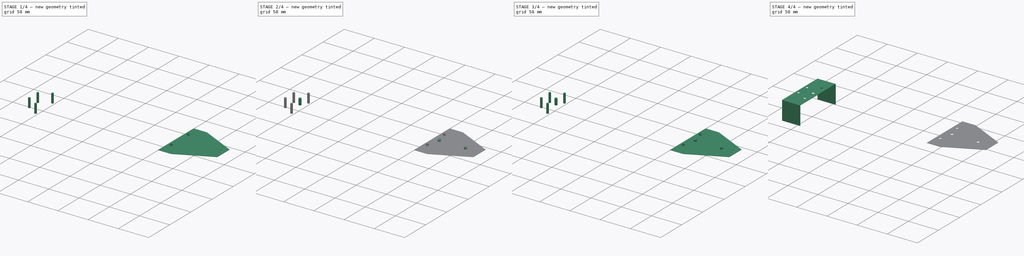
[diagram: build sequence overview — one tinted view per stage of 4, left to right]
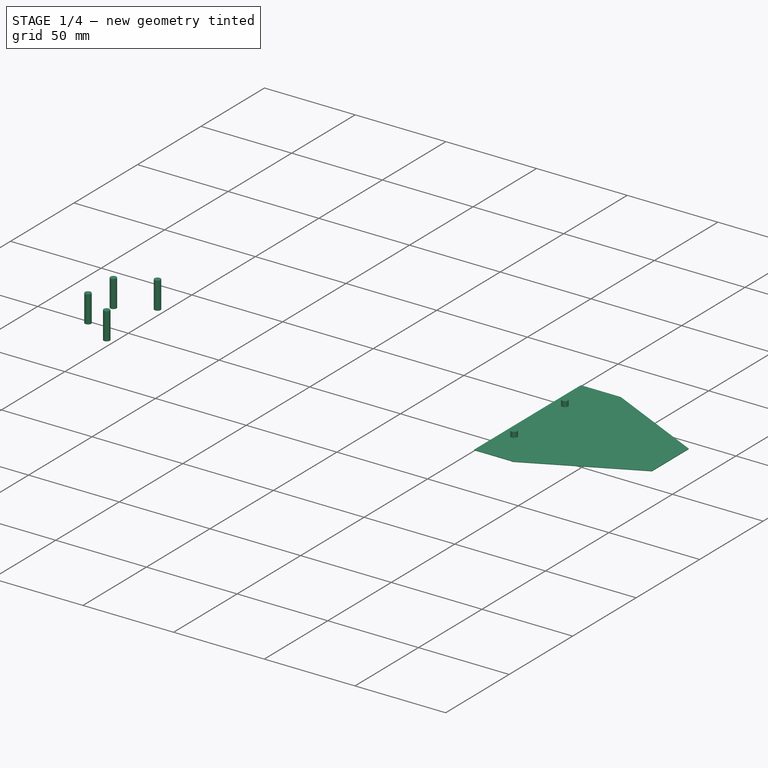
[diagram: stage 1 of 4 — iso view after this stage's code; geometry added in this stage tinted green]
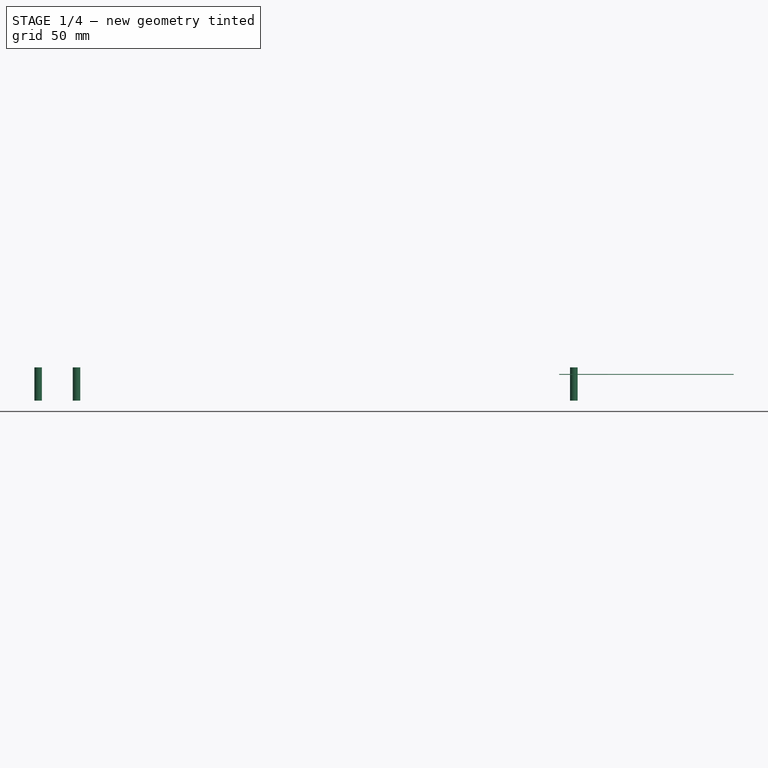
[diagram: stage 1 of 4 — front view after this stage's code; geometry added in this stage tinted green]
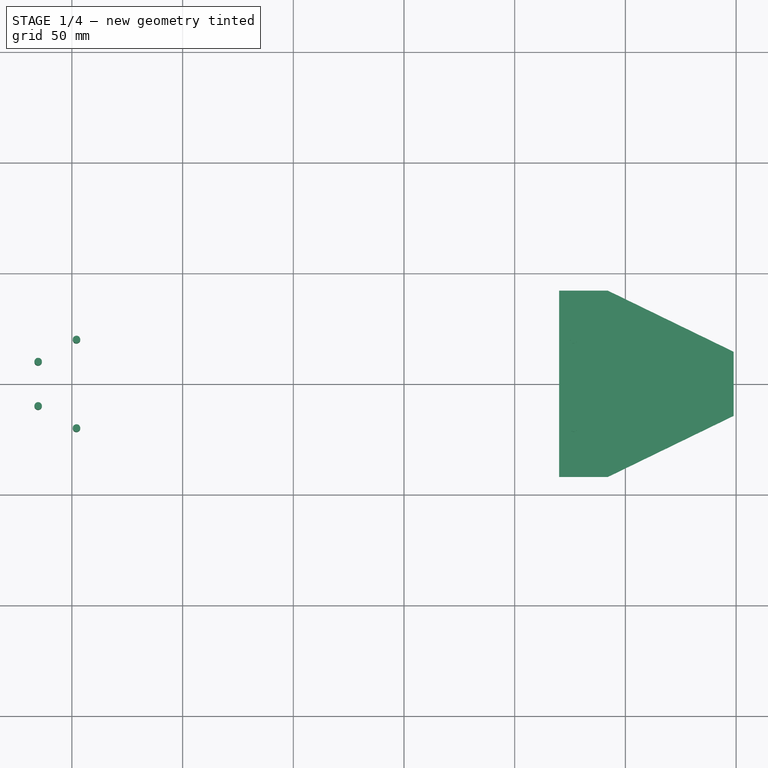
[diagram: stage 1 of 4 — top view after this stage's code; geometry added in this stage tinted green]
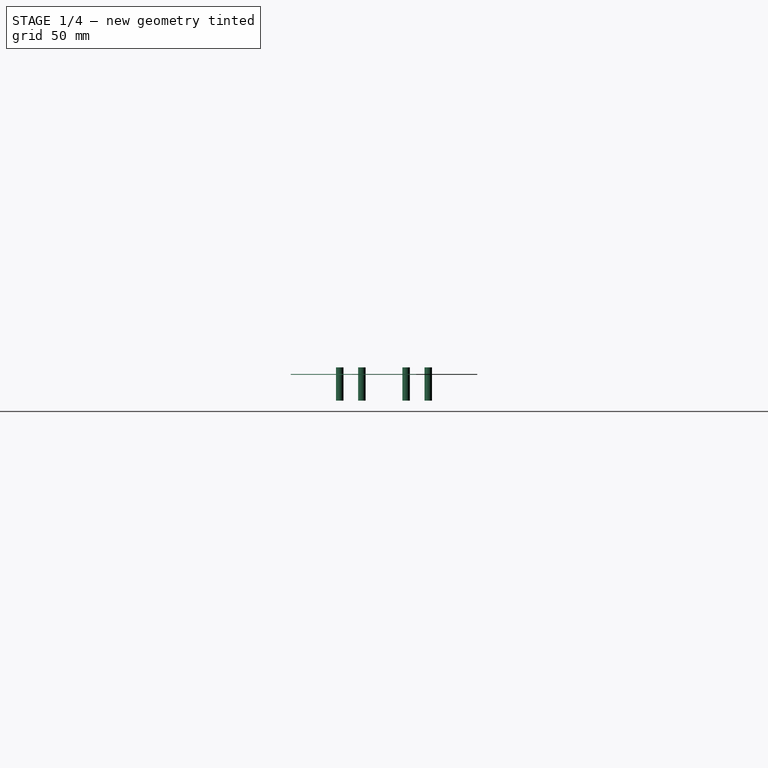
[diagram: stage 1 of 4 — right view after this stage's code; geometry added in this stage tinted green]
FCSTD DOCUMENT  (FreeCAD 1.1R38827 (Git))
Label: composit_stand3_dropper_fix_cap_inner_model
License: All rights reserved
LicenseURL: http://en.wikipedia.org/wiki/All_rights_reserved
objects: PartDesign::SubShapeBinder×3, App::Link×3, Part::FeaturePython×3, PartDesign::Body×3, Sketcher::SketchObject×2, PartDesign::FeaturePython×2, Part::MultiFuse×2, PartDesign::Boolean×2, PartDesign::CoordinateSystem×2, Part::Cylinder×1, Part::Mirroring×1
note: 27 computed .brp shape members not serialized (recipe doc carries the construction recipe); baked Part::Feature solids carry a one-line shape summary decoded from their .brp
EXTERNAL_REF file=composit_stand3_dropper_fix_cap_outer_main.FCStd obj=Spreadsheet
EXTERNAL_REF file=composit_stand3_dropper_fix_main.FCStd obj=Sketch
EXTERNAL_REF file=composit_stand3_dropper_fix_cap_outer_main.FCStd obj=Join
EXTERNAL_REF file=composit_stand3_dropper_fix_cap_outer_main.FCStd obj=Join001
EXTERNAL_REF file=composit_stand3_main.FCStd obj=Cylinder001
EXTERNAL_REF file=composit_stand3_dropper_fix_cap_outer_main.FCStd obj=Sketch

FEATURE [Part::FeaturePython] Populate001  label="Populate holes_3.4mm_placements with hole_3.4mm_rev"  # WARN: FeaturePython — macro-defined, semantics opaque (R4)
  Copying = 0
  ExposePlacement = false
  MarkerShape = 1
  MarkerSize = 0
  NumElements = 0
  Object = -> Link002
  OutputCompounding = 1
  PlacementsTo = -> Link
  Referencing = 0
  Type = lattice2PopulateCopies.LatticePopulateCopies
  isLattice = 0
FEATURE [PartDesign::FeaturePython] BaseBend001  # WARN: FeaturePython — macro-defined, semantics opaque (R4)
  BendSide = 0
  BendSketch = -> Binder001
  MidPlane = false
  Reverse = true
  Suppressed = false
  length = 70
  radius = 0.1
  thickness = 0.3
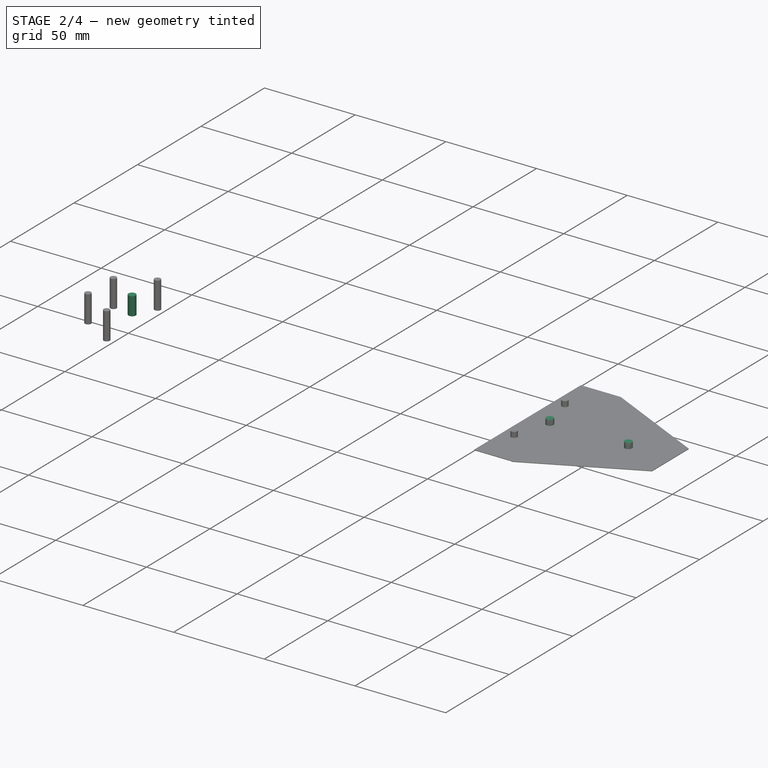
[diagram: stage 2 of 4 — iso view after this stage's code; geometry added in this stage tinted green]
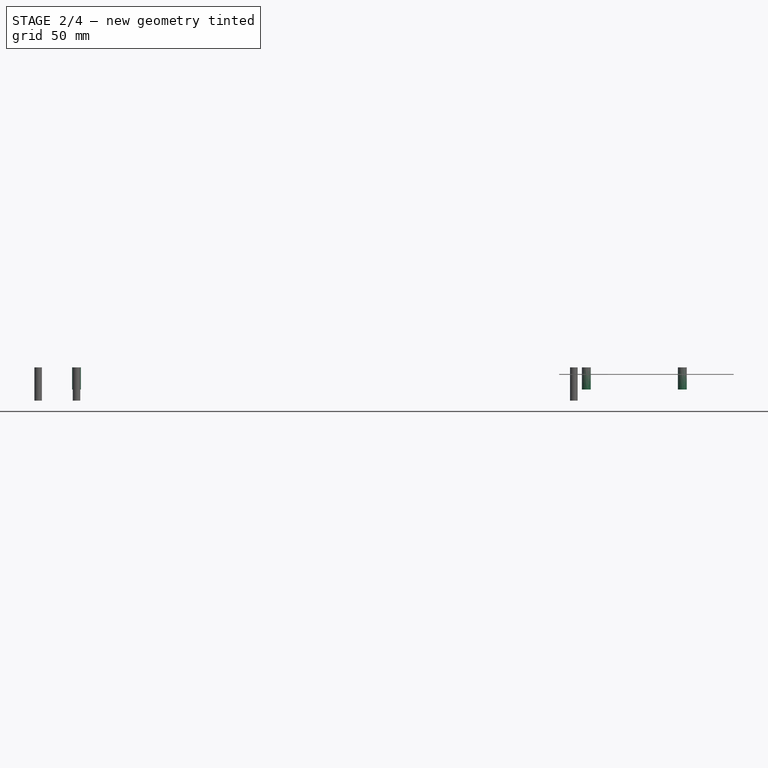
[diagram: stage 2 of 4 — front view after this stage's code; geometry added in this stage tinted green]
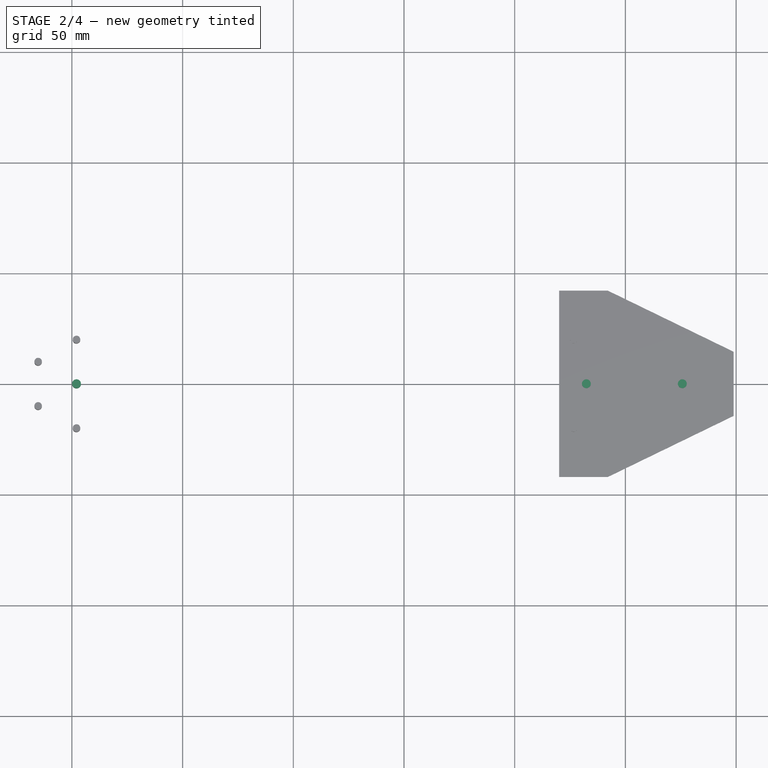
[diagram: stage 2 of 4 — top view after this stage's code; geometry added in this stage tinted green]
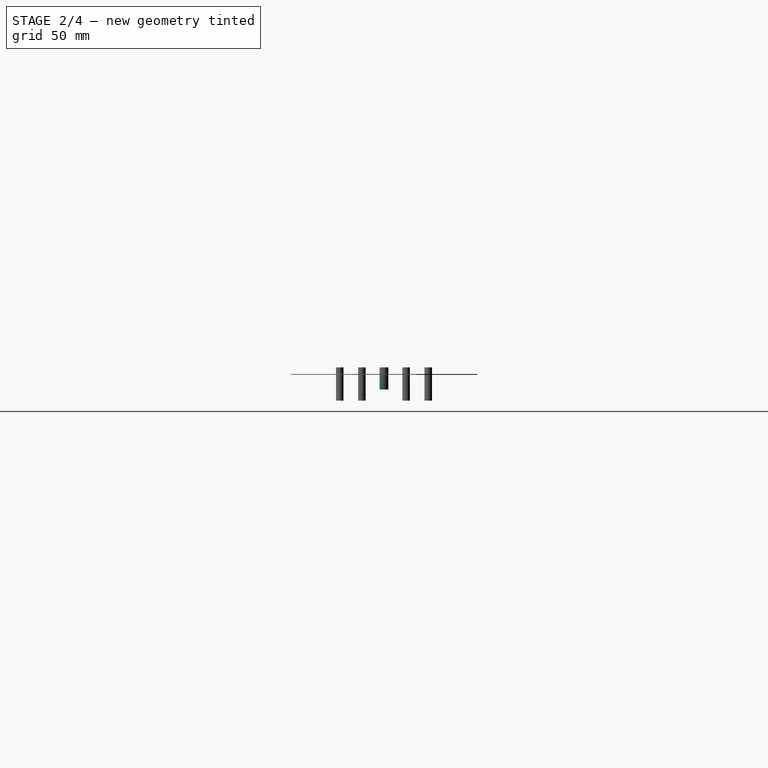
[diagram: stage 2 of 4 — right view after this stage's code; geometry added in this stage tinted green]
FEATURE [App::Link] Link002  label="hole_3.4mm_rev"
  LinkClaimChild = true
  LinkTransform = true
  LinkedObject = -> <external composit_stand3_main.FCStd>#Cylinder001
FEATURE [Part::Cylinder] Cylinder  label="hole_4mm_rev"
  Angle = 360
  AttacherType = Attacher::AttachEngine3D
  FirstAngle = 0
  Height = 10
  Placement = pos=(0,0,0) rot=(1,0,0;3.14159rad)
  Radius = 2
  SecondAngle = 0
FEATURE [Part::FeaturePython] Populate  label="Populate holes_4mm_placements with hole_4mm_rev"  # WARN: FeaturePython — macro-defined, semantics opaque (R4)
  Copying = 0
  ExposePlacement = false
  MarkerShape = 1
  MarkerSize = 0
  NumElements = 0
  Object = -> Cylinder
  OutputCompounding = 1
  PlacementsTo = -> Link001
  Referencing = 0
  Type = lattice2PopulateCopies.LatticePopulateCopies
  isLattice = 0
FEATURE [PartDesign::CoordinateSystem] Local_CS
  AttacherType = Attacher::AttachEngine3D
  AttachmentSupport = -> [XY_Plane]
  MapMode = 5
FEATURE [PartDesign::Body] Body  label="cap_inner_1"
  AllowCompound = false
  Group = -> [Binder,BaseBend,Boolean,Local_CS]
  Origin = -> Origin
  Tip = -> Boolean
FEATURE [PartDesign::CoordinateSystem] Local_CS001
  AttacherType = Attacher::AttachEngine3D
  AttachmentSupport = -> [XY_Plane001]
  MapMode = 5
FEATURE [PartDesign::Body] Body001  label="cap_inner_2"
  AllowCompound = false
  Group = -> [Binder001,BaseBend001,Boolean001,Local_CS001]
  Origin = -> Origin001
  Tip = -> Boolean001
FEATURE [PartDesign::SubShapeBinder] Binder002
  BindCopyOnChange = 0
  BindMode = 0
  ClaimChildren = false
  Fuse = false
  MakeFace = true
  OffsetFill = false
  OffsetIntersection = false
  OffsetJoinType = 0
  OffsetOpenResult = false
  PartialLoad = false
  Relative = true
  Support = -> [<external composit_stand3_dropper_fix_cap_outer_main.FCStd>#Sketch]
  _Version = 2
  expr: Support = composit_stand3_dropper_fix_cap_outer_main#<<main_sketch>>._self
FEATURE [Sketcher::SketchObject] Sketch001
  ArcFitTolerance = 0
  ExternalGeometry = -> [Binder002]
  FullyConstrained = true
  MakeInternals = false
  sketch-geometry (7):
    g0: LineSegment StartX=270.046 StartY=0 StartZ=0 EndX=270.046 EndY=42.1 EndZ=0
    g1: LineSegment StartX=270.046 StartY=42.1 StartZ=0 EndX=292.046 EndY=42.1 EndZ=0
    g2: LineSegment StartX=292.046 StartY=42.1 StartZ=0 EndX=348.872 EndY=14.5 EndZ=0
    g3: LineSegment StartX=348.872 StartY=14.5 StartZ=0 EndX=348.872 EndY=0 EndZ=0
    g4: LineSegment [constr] StartX=292.046 StartY=45.1 StartZ=0 EndX=292.046 EndY=42.1 EndZ=0
    g5: LineSegment [constr] StartX=292.046 StartY=42.1 StartZ=0 EndX=293.356 EndY=44.7985 EndZ=0
    g6: LineSegment [constr] StartX=348.872 StartY=14.5 StartZ=0 EndX=351.872 EndY=14.5 EndZ=0
  constraints (22):
    c: PointOnObject(g0,g-1)
    c: Vertical(g0)
    c: Coincident(g0,g1)
    c: Horizontal(g1)
    c: Coincident(g1,g2)
    c: Coincident(g2,g3)
    c: PointOnObject(g3,g-1)
    c: Vertical(g3)
    c: Coincident(g4,g1)
    c: Vertical(g4)
    c: Coincident(g4,g5)
    c: PointOnObject(g5,g-3)
    c: Coincident(g2,g6)
    c: Horizontal(g6)
    c: Vertical(g-3,g6)
    c: Perpendicular(g-3,g5)
    c: Horizontal(g4,g-3)
    c: Equal(g4,g5)
    c: Equal(g5,g6)
    c: DistanceY(g4,g4) = 3
    c: DistanceX(g1,g1) = 22
    c: Perpendicular(g5,g2)
FEATURE [Part::Mirroring] Part__Mirroring  label="Sketch001 (Mirror #1)"
  Base = (0,0,0)
  Normal = (0,1,0)
  Source = -> Sketch001
FEATURE [Part::FeaturePython] Connect  # WARN: FeaturePython — macro-defined, semantics opaque (R4)
  Objects = -> [Sketch001,Part__Mirroring]
  Tolerance = 0

RESOLVED EXTERNAL PARTS (link-assembly join: the EXTERNAL_REF files above that resolve inside this repo's crawl, each included once):
---- part composit_stand3_dropper_fix_cap_outer_main.FCStd = doc fcstd_619fc7925e38 ----
FCSTD DOCUMENT  (FreeCAD 1.1R38827 (Git))
Label: composit_stand3_dropper_fix_cap_outer_main
License: All rights reserved
LicenseURL: http://en.wikipedia.org/wiki/All_rights_reserved
objects: Part::FeaturePython×8, Sketcher::SketchObject×4, Part::Feature×1, PartDesign::SubShapeBinder×1, Part::Offset2D×1, Spreadsheet::Sheet×1
note: 19 computed .brp shape members not serialized (recipe doc carries the construction recipe); baked Part::Feature solids carry a one-line shape summary decoded from their .brp
EXTERNAL_REF file=composit_stand3_dropper_fix_main.FCStd obj=Sketch

FEATURE [Part::Feature] Body168  label="cap_outer_material_0.30ansi002"
  Placement = pos=(0,0,0) rot=(0,0,-1;1.5708rad)
  shape: bbox 339.9 x 90.2 x 40.4 mm, 133 faces (baked)
FEATURE [PartDesign::SubShapeBinder] Binder
  BindCopyOnChange = 0
  BindMode = 0
  ClaimChildren = false
  Fuse = false
  MakeFace = true
  OffsetFill = false
  OffsetIntersection = false
  OffsetJoinType = 0
  OffsetOpenResult = false
  PartialLoad = false
  Relative = true
  Support = -> [<external composit_stand3_dropper_fix_main.FCStd>#Sketch]
  _Version = 2
FEATURE [Sketcher::SketchObject] Sketch  label="main_sketch"
  ArcFitTolerance = 0
  ExternalGeometry = -> [Binder]
  FullyConstrained = true
  MakeInternals = false
  sketch-geometry (10):
    g0: LineSegment StartX=351.872 StartY=0 StartZ=0 EndX=351.872 EndY=16.378 EndZ=0
    g1: LineSegment StartX=351.872 StartY=16.378 StartZ=0 EndX=292.736 EndY=45.1 EndZ=0
    g2: LineSegment StartX=292.736 StartY=45.1 StartZ=0 EndX=26.0385 EndY=45.1 EndZ=0
    g3: LineSegment StartX=26.0385 StartY=45.1 StartZ=0 EndX=0.23094 EndY=0.4 EndZ=0
    g4: LineSegment [constr] StartX=292.046 StartY=45.1 StartZ=0 EndX=292.046 EndY=42.1 EndZ=0
    g5: LineSegment [constr] StartX=292.046 StartY=42.1 StartZ=0 EndX=293.356 EndY=44.7985 EndZ=0
    g6: LineSegment [constr] StartX=351.872 StartY=14.5 StartZ=0 EndX=348.872 EndY=14.5 EndZ=0
    g7: LineSegment [constr] StartX=348.872 StartY=14.5 StartZ=0 EndX=350.182 EndY=17.1985 EndZ=0
    g8: LineSegment [constr] StartX=27.7705 StartY=45.1 StartZ=0 EndX=27.7705 EndY=42.1 EndZ=0
    g9: LineSegment [constr] StartX=27.7705 StartY=42.1 StartZ=0 EndX=25.1725 EndY=43.6 EndZ=0
  constraints (31):
    c: Vertical(g0)
    c: Coincident(g0,g1)
    c: Coincident(g1,g2)
    c: Horizontal(g2)
    c: Coincident(g2,g3)
    c: PointOnObject(g0,g-1)
    c: PointOnObject(g4,g2)
    c: Coincident(g4,g-4)
    c: Vertical(g4)
    c: Coincident(g4,g5)
    c: PointOnObject(g5,g1)
    c: PointOnObject(g6,g0)
    c: Coincident(g6,g-3)
    c: Horizontal(g6)
    c: Coincident(g6,g7)
    c: PointOnObject(g7,g1)
    c: Perpendicular(g1,g7)
    c: Perpendicular(g1,g5)
    c: Equal(g6,g7)
    c: Equal(g7,g5)
    c: DistanceX(g-3,g0) = 3
    c: Equal(g4,g5)
    c: PointOnObject(g8,g2)
    c: Coincident(g8,g-5)
    c: Vertical(g8)
    c: Coincident(g8,g9)
    c: PointOnObject(g9,g3)
    c: Perpendicular(g3,g9)
    c: Equal(g9,g8)
    c: Parallel(g3,g-5)
    c: DistanceY(g3) = 0.4
FEATURE [Part::Offset2D] Offset2D
  Fill = false
  Intersection = false
  Join = 0
  Mode = 0
  SelfIntersection = false
  Source = -> Sketch
  Value = -0.4
FEATURE [Sketcher::SketchObject] Sketch001
  ArcFitTolerance = 0
  ExternalGeometry = -> [Offset2D]
  FullyConstrained = true
  MakeInternals = false
  sketch-geometry (11):
    g0: LineSegment StartX=351.472 StartY=16.1276 StartZ=0 EndX=325.709 EndY=0 EndZ=0
    g1: LineSegment [constr] StartX=336.965 StartY=23.1736 StartZ=0 EndX=325.709 EndY=0 EndZ=0
    g2: LineSegment [constr] StartX=325.709 StartY=0 StartZ=0 EndX=351.472 EndY=0 EndZ=0
    g3: LineSegment StartX=292.644 StartY=44.7 StartZ=0 EndX=282.363 EndY=0 EndZ=0
    g4: LineSegment [constr] StartX=301.892 StartY=40.2083 StartZ=0 EndX=282.363 EndY=0 EndZ=0
    g5: LineSegment [constr] StartX=282.363 StartY=0 StartZ=0 EndX=282.363 EndY=44.7 EndZ=0
    g6: LineSegment StartX=325.709 StartY=0 StartZ=0 EndX=282.363 EndY=0 EndZ=0
    g7: LineSegment StartX=282.363 StartY=0 StartZ=0 EndX=52.077 EndY=0 EndZ=0
    g8: LineSegment StartX=52.077 StartY=0 StartZ=0 EndX=26.2694 EndY=44.7 EndZ=0
    g9: LineSegment [constr] StartX=52.077 StartY=44.7 StartZ=0 EndX=52.077 EndY=0 EndZ=0
    g10: LineSegment [constr] StartX=52.077 StartY=0 StartZ=0 EndX=13.3657 EndY=22.35 EndZ=0
  constraints (31):
    c: Coincident(g1,g2)
    c: Horizontal(g2)
    c: Vertical(g2,g0)
    c: Equal(g1,g2)
    c: Coincident(g1,g0)
    c: PointOnObject(g0,g-1)
    c: PointOnObject(g3,g-1)
    c: Coincident(g4,g3)
    c: Coincident(g4,g5)
    c: Vertical(g5)
    c: Horizontal(g5,g3)
    c: Equal(g4,g5)
    c: Coincident(g0,g6)
    c: Coincident(g6,g3)
    c: Coincident(g6,g7)
    c: PointOnObject(g7,g-1)
    c: Coincident(g7,g8)
    c: Coincident(g9,g7)
    c: Vertical(g9)
    c: Coincident(g9,g10)
    c: Horizontal(g9,g8)
    c: Equal(g10,g9)
    c: Coincident(g0,g-4)
    c: PointOnObject(g1,g-4)
    c: Perpendicular(g-4,g1)
    c: Coincident(g3,g-4)
    c: PointOnObject(g4,g-4)
    c: Perpendicular(g-4,g4)
    c: PointOnObject(g10,g-3)
    c: Perpendicular(g-3,g10)
    c: Coincident(g8,g-3)
FEATURE [Sketcher::SketchObject] Sketch002  label="top_cut_sketch"
  ArcFitTolerance = 0
  ExternalGeometry = -> [Sketch001,Sketch,Offset2D]
  FullyConstrained = true
  MakeInternals = false
  sketch-geometry (34):
    g0: LineSegment StartX=26.3272 StartY=44.7 StartZ=0 EndX=52.1059 EndY=0.05 EndZ=0
    g1: LineSegment StartX=52.1059 StartY=0.05 StartZ=0 EndX=282.323 EndY=0.05 EndZ=0
    g2: LineSegment StartX=282.323 StartY=0.05 StartZ=0 EndX=292.592 EndY=44.7 EndZ=0
    g3: LineSegment StartX=292.69 StartY=44.6776 StartZ=0 EndX=282.425 EndY=0.05 EndZ=0
    g4: LineSegment StartX=282.425 StartY=0.05 StartZ=0 EndX=325.695 EndY=0.05 EndZ=0
    g5: LineSegment StartX=325.695 StartY=0.05 StartZ=0 EndX=351.419 EndY=16.1534 EndZ=0
    g6: LineSegment StartX=351.472 StartY=16.0687 StartZ=0 EndX=325.803 EndY=0 EndZ=0
    g7: LineSegment [constr] StartX=51.9904 StartY=0.05 StartZ=0 EndX=52.1059 EndY=0.05 EndZ=0
    g8: LineSegment [constr] StartX=282.323 StartY=0.05 StartZ=0 EndX=282.425 EndY=0.05 EndZ=0
    g9: LineSegment [constr] StartX=325.695 StartY=0.05 StartZ=0 EndX=325.883 EndY=0.05 EndZ=0
    g10: LineSegment [constr] StartX=51.9904 StartY=0 StartZ=0 EndX=51.9904 EndY=0.05 EndZ=0
    g11: LineSegment [constr] StartX=51.9904 StartY=0.05 StartZ=0 EndX=52.0337 EndY=0.075 EndZ=0
    g12: LineSegment [constr] StartX=52.0337 StartY=0.075 StartZ=0 EndX=52.077 EndY=0.1 EndZ=0
    g13: LineSegment [constr] StartX=282.425 StartY=0.05 StartZ=0 EndX=282.377 EndY=0.0612074 EndZ=0
    g14: LineSegment [constr] StartX=282.377 StartY=0.0612074 StartZ=0 EndX=282.328 EndY=0.0724148 EndZ=0
    g15: LineSegment [constr] StartX=325.883 StartY=0.05 StartZ=0 EndX=325.857 EndY=0.0923805 EndZ=0
    g16: LineSegment [constr] StartX=325.857 StartY=0.0923805 StartZ=0 EndX=325.83 EndY=0.134761 EndZ=0
    g17: LineSegment StartX=351.419 StartY=16.1534 StartZ=0 EndX=351.593 EndY=16.5132 EndZ=0
    g18: LineSegment StartX=351.593 StartY=16.5132 StartZ=0 EndX=351.872 EndY=16.378 EndZ=0
    g19: LineSegment StartX=351.872 StartY=16.378 StartZ=0 EndX=351.872 EndY=16.0687 EndZ=0
    g20: LineSegment StartX=351.872 StartY=16.0687 StartZ=0 EndX=351.472 EndY=16.0687 EndZ=0
    g21: LineSegment [constr] StartX=351.419 StartY=16.1534 StartZ=0 EndX=351.472 EndY=16.1276 EndZ=0
    g22: LineSegment [constr] StartX=351.472 StartY=16.1276 StartZ=0 EndX=351.472 EndY=16.0687 EndZ=0
    g23: LineSegment StartX=26.2406 StartY=44.65 StartZ=0 EndX=25.8942 EndY=44.85 EndZ=0
    g24: LineSegment StartX=25.8942 StartY=44.85 StartZ=0 EndX=26.0385 EndY=45.1 EndZ=0
    g25: LineSegment StartX=26.0385 StartY=45.1 StartZ=0 EndX=26.3272 EndY=45.1 EndZ=0
    g26: LineSegment StartX=26.3272 StartY=45.1 StartZ=0 EndX=26.3272 EndY=44.7 EndZ=0
    g27: LineSegment StartX=292.592 StartY=44.7 StartZ=0 EndX=292.592 EndY=45.1 EndZ=0
    g28: LineSegment StartX=292.592 StartY=45.1 StartZ=0 EndX=292.736 EndY=45.1 EndZ=0
    g29: LineSegment StartX=292.736 StartY=45.1 StartZ=0 EndX=292.864 EndY=45.0374 EndZ=0
    g30: LineSegment StartX=292.864 StartY=45.0374 StartZ=0 EndX=292.69 EndY=44.6776 EndZ=0
    g31: LineSegment StartX=26.2406 StartY=44.65 StartZ=0 EndX=51.9904 EndY=0.05 EndZ=0
    g32: LineSegment StartX=51.9904 StartY=0.05 StartZ=0 EndX=0 EndY=0.05 EndZ=0
    g33: LineSegment StartX=0 StartY=0.05 StartZ=0 EndX=0 EndY=0 EndZ=0
  constraints (95):
    c: Coincident(g0,g1)
    c: Horizontal(g1)
    c: Coincident(g1,g2)
    c: Coincident(g3,g4)
    c: Horizontal(g4)
    c: Coincident(g4,g5)
    c: Coincident(g7,g0)
    c: Horizontal(g7)
    c: Coincident(g8,g1)
    c: Coincident(g8,g3)
    c: Horizontal(g8)
    c: Coincident(g9,g4)
    c: Horizontal(g9)
    c: Parallel(g6,g-4)
    c: Parallel(g-4,g5)
    c: Parallel(g3,g-3)
    c: Parallel(g-3,g2)
    c: Parallel(g0,g-5)
    c: PointOnObject(g10,g-1)
    c: Coincident(g10,g11)
    c: PointOnObject(g11,g-5)
    c: Coincident(g11,g12)
    c: PointOnObject(g12,g0)
    c: Vertical(g10)
    c: Equal(g10,g11)
    c: Equal(g11,g12)
    c: Coincident(g3,g13)
    c: PointOnObject(g13,g-3)
    c: Coincident(g13,g14)
    c: PointOnObject(g14,g2)
    c: PointOnObject(g15,g-4)
    c: Coincident(g15,g16)
    c: PointOnObject(g16,g5)
    c: Equal(g15,g16)
    c: Equal(g16,g13)
    c: Equal(g13,g14)
    c: Equal(g14,g12)
    c: Perpendicular(g-5,g11)
    c: Perpendicular(g12,g-5)
    c: Perpendicular(g13,g-3)
    c: Perpendicular(g14,g-3)
    c: Perpendicular(g15,g-4)
    c: Perpendicular(g16,g-4)
    c: Coincident(g5,g17)
    c: PointOnObject(g17,g-6)
    c: Coincident(g17,g18)
    c: Coincident(g18,g-6)
    c: Coincident(g18,g19)
    c: Vertical(g19)
    c: Coincident(g19,g20)
    c: Coincident(g20,g6)
    c: Horizontal(g20)
    c: Coincident(g5,g21)
    c: Coincident(g21,g-4)
    c: Coincident(g21,g22)
    c: Coincident(g22,g6)
    c: Vertical(g22)
    c: PointOnObject(g5,g-7)
    c: Perpendicular(g17,g21)
    c: DistanceY(g10,g10) = 0.05
    c: Coincident(g31,g23)
    c: Coincident(g23,g24)
    c: Coincident(g24,g25)
    c: Horizontal(g25)
    c: Coincident(g25,g26)
    c: Coincident(g26,g0)
    c: Vertical(g26)
    c: Coincident(g24,g-8)
    c: Perpendicular(g24,g23)
    c: Equal(g26,g23)
    c: Equal(g23,g20)
    c: Equal(g25,g24)
    c: Coincident(g2,g27)
    c: Vertical(g27)
    c: Coincident(g27,g28)
    c: Coincident(g28,g-6)
    c: Coincident(g28,g29)
    c: PointOnObject(g29,g-6)
    c: Coincident(g29,g30)
    c: Coincident(g30,g3)
    c: Horizontal(g28)
    c: Perpendicular(g29,g30)
    c: Equal(g30,g27)
    c: Equal(g30,g17)
    c: Coincident(g7,g10)
    c: PointOnObject(g9,g6)
    c: Coincident(g9,g15)
    c: PointOnObject(g6,g-1)
    c: Parallel(g-5,g31)
    c: Coincident(g31,g7)
    c: Coincident(g7,g32)
    c: Horizontal(g32)
    c: Coincident(g33,g32)
    c: Coincident(g33,g-1)
    c: Vertical(g33)
FEATURE [Part::FeaturePython] Placment  # WARN: FeaturePython — macro-defined, semantics opaque (R4)
  AttacherType = Attacher::AttachEngine3D
  AttachmentSupport = -> [Sketch001]
  ExposePlacement = true
  MapMode = 1
  MarkerShape = 1
  MarkerSize = 10
  NumElements = 1
  Placement = pos=(52.077,0,0) rot=(0,0,1;0rad)
  Type = lattice2AttachablePlacement.AttachablePlacement
  isLattice = 1
FEATURE [Part::FeaturePython] Placment001  # WARN: FeaturePython — macro-defined, semantics opaque (R4)
  AttacherType = Attacher::AttachEngine3D
  AttachmentSupport = -> [Sketch001]
  ExposePlacement = true
  MapMode = 1
  MarkerShape = 1
  MarkerSize = 10
  NumElements = 1
  Placement = pos=(282.363,0,0) rot=(0,0,1;0rad)
  Type = lattice2AttachablePlacement.AttachablePlacement
  isLattice = 1
FEATURE [Part::FeaturePython] Placment002  # WARN: FeaturePython — macro-defined, semantics opaque (R4)
  AttacherType = Attacher::AttachEngine3D
  AttachmentSupport = -> [Sketch001]
  ExposePlacement = true
  MapMode = 1
  MarkerShape = 1
  MarkerSize = 10
  NumElements = 1
  Placement = pos=(325.709,0,0) rot=(0,0,1;0rad)
  Type = lattice2AttachablePlacement.AttachablePlacement
  isLattice = 1
FEATURE [Sketcher::SketchObject] Sketch003
  ArcFitTolerance = 0
  ExternalGeometry = -> [Sketch001]
  FullyConstrained = true
  MakeInternals = false
  sketch-geometry (9):
    g0: Circle CenterX=34.7565 CenterY=10 CenterZ=0 NormalX=0 NormalY=0 NormalZ=1 AngleXU=0 Radius=1.7
    g1: Circle CenterX=52.077 CenterY=20 CenterZ=0 NormalX=0 NormalY=0 NormalZ=1 AngleXU=0 Radius=1.7
    g2: Circle CenterX=276.702 CenterY=20 CenterZ=0 NormalX=0 NormalY=0 NormalZ=1 AngleXU=0 Radius=1.7
    g3: LineSegment [constr] StartX=52.077 StartY=0 StartZ=0 EndX=52.077 EndY=20 EndZ=0
    g4: LineSegment [constr] StartX=34.7565 StartY=10 StartZ=0 EndX=34.7565 EndY=0 EndZ=0
    g5: LineSegment [constr] StartX=52.077 StartY=20 StartZ=0 EndX=43.4167 EndY=15 EndZ=0
    g6: LineSegment [constr] StartX=43.4167 StartY=15 StartZ=0 EndX=34.7565 EndY=10 EndZ=0
    g7: LineSegment [constr] StartX=52.077 StartY=20 StartZ=0 EndX=276.702 EndY=20 EndZ=0
    g8: LineSegment [constr] StartX=276.702 StartY=20 StartZ=0 EndX=286.447 EndY=17.7585 EndZ=0
  constraints (24):
    c: Coincident(g3,g1)
    c: Vertical(g3)
    c: Coincident(g3,g5)
    c: Coincident(g6,g0)
    c: Coincident(g6,g4)
    c: PointOnObject(g4,g-1)
    c: Vertical(g4)
    c: Coincident(g5,g6)
    c: Parallel(g5,g6)
    c: Diameter(g1) = 3.4
    c: Equal(g1,g0)
    c: Equal(g2,g1)
    c: Equal(g5,g6)
    c: Coincident(g7,g1)
    c: Coincident(g7,g2)
    c: Distance(g5) = 10
    c: PointOnObject(g5,g-3)
    c: Coincident(g3,g-3)
    c: Perpendicular(g-3,g5)
    c: Coincident(g8,g2)
    c: PointOnObject(g8,g-4)
    c: Perpendicular(g-4,g8)
    c: Equal(g8,g5)
    c: Horizontal(g7)
FEATURE [Part::FeaturePython] Downgrade  label="Edges of Sketch003"  # WARN: FeaturePython — macro-defined, semantics opaque (R4)
  Base = -> Sketch003
  Mode = 8
FEATURE [Part::FeaturePython] ArrayFromShape  label="Array from Edges of Sketch003"  # WARN: FeaturePython — macro-defined, semantics opaque (R4)
  CompoundTraversal = 1
  ExposePlacement = false
  MarkerShape = 1
  MarkerSize = 50
  NumElements = 3
  OrientElementIndex = 0
  OrientMode = 2
  ShapeLink = -> Downgrade
  TranslateElementIndex = 0
  TranslateMode = 3
  Type = lattice2ArrayFromShape.LatticeArrayFromShape
  isLattice = 1
FEATURE [Part::FeaturePython] Mirror  label="Mirror of Array from Edges of Sketch003"  # WARN: FeaturePython — macro-defined, semantics opaque (R4)
  ExposePlacement = false
  FlipX = false
  FlipY = true
  FlipZ = false
  MarkerShape = 1
  MarkerSize = 0
  NumElements = 3
  Object = -> ArrayFromShape
  ObjectTraversal = 0
  Type = lattice2Mirror.LatticeMirror
  isLattice = 1
FEATURE [Part::FeaturePython] Join  label="holes_3.4mm_placements"  # WARN: FeaturePython — macro-defined, semantics opaque (R4)
  ExposePlacement = false
  Interleave = false
  Links = -> [ArrayFromShape,Mirror]
  MarkerShape = 1
  MarkerSize = 0
  NumElements = 6
  Placement = pos=(0,0,40) rot=(0,0,1;0rad)
  Type = lattice2JoinArrays.JoinArrays
  isLattice = 1
  expr: .Placement.Base.z = <<Properties>>.height
FEATURE [Part::FeaturePython] Join001  label="holes_4mm_placements"  # WARN: FeaturePython — macro-defined, semantics opaque (R4)
  ExposePlacement = false
  Interleave = false
  Links = -> [Placment,Placment002,Placment001]
  MarkerShape = 1
  MarkerSize = 0
  NumElements = 3
  Placement = pos=(0,0,40) rot=(0,0,1;0rad)
  Type = lattice2JoinArrays.JoinArrays
  isLattice = 1
  expr: .Placement.Base.z = <<Properties>>.height
FEATURE [Spreadsheet::Sheet] Spreadsheet  label="Properties"
  cells = B2(height)==40 mm; C2(width)=
---- part composit_stand3_main.FCStd = doc fcstd_90b2f18ea94f ----
FCSTD DOCUMENT  (FreeCAD 1.1R38827 (Git))
Label: composit_stand3_main
License: All rights reserved
LicenseURL: http://en.wikipedia.org/wiki/All_rights_reserved
objects: Part::Cylinder×2, Sketcher::SketchObject×1, Part::FeaturePython×1
note: 5 computed .brp shape members not serialized (recipe doc carries the construction recipe); baked Part::Feature solids carry a one-line shape summary decoded from their .brp

FEATURE [Sketcher::SketchObject] Sketch  label="main_sketch"
  ArcFitTolerance = 0
  FullyConstrained = true
  MakeInternals = false
  sketch-geometry (4):
    g0: LineSegment [constr] StartX=0 StartY=0 StartZ=0 EndX=8.37158 EndY=14.5 EndZ=0
    g1: LineSegment StartX=8.37158 StartY=14.5 StartZ=0 EndX=351.872 EndY=14.5 EndZ=0
    g2: LineSegment StartX=351.872 StartY=14.5 StartZ=0 EndX=351.872 EndY=0 EndZ=0
    g3: GeomPoint [constr] X=351.872 Y=-14.5 Z=0
  constraints (13):
    c: Coincident(g-1,g0)
    c: Horizontal(g1)
    c: Coincident(g1,g2)
    c: PointOnObject(g2,g-1)
    c: Vertical(g2)
    c: Angle(g0) = 1.0472
    c: DistanceX(g0,g1) = 343.5  'face_width'
    c: DistanceY(g3,g1) = 29  'end_width'
    c: Symmetric(g3,g1,g2)
    c: DistanceX(g0) = 8.37158  'x_face_offset'
    c: Coincident(g1,g0)
    c: Distance(g0) = 16.7432  'corner_distance'
    c: DistanceY(g0,g0) = 14.5
FEATURE [Part::FeaturePython] LinearArray  label="modules_placement_x"  # WARN: FeaturePython — macro-defined, semantics opaque (R4)
  Alignment = 0
  CellStart = A1
  Count = 2
  Dir = (1,0,0)
  DirIsDriven = true
  DistributionLaw = 0
  DrivenProperty = 1
  EndInclusive = true
  ExposePlacement = false
  GeneratorMode = 0
  MarkerShape = 1
  MarkerSize = 0
  NumElements = 2
  OrientMode = 1
  Placement = pos=(8.37158,14.5,0) rot=(0,0,1;0rad)
  Point = (0,0,0)
  PointIsDriven = true
  Reverse = false
  SpanEnd = 248
  SpanStart = 98
  Step = 150
  Type = lattice2LinearArray.LinearArray
  VSGVersion = 1
  Values = 98.0 | 248.0
  ValuesSource = 2
  isLattice = 1
  expr: .Placement.Base.x = <<main_sketch>>.Constraints.end_width / 2 / tan(60)
  expr: .Placement.Base.y = <<main_sketch>>.Constraints.end_width / 2
FEATURE [Part::Cylinder] Cylinder  label="hole_3.4mm"
  Angle = 360
  AttacherType = Attacher::AttachEngine3D
  FirstAngle = 0
  Height = 15
  Radius = 1.7
  SecondAngle = 0
FEATURE [Part::Cylinder] Cylinder001  label="hole_3.4mm_rev"
  Angle = 360
  AttacherType = Attacher::AttachEngine3D
  FirstAngle = 0
  Height = 15
  Placement = pos=(0,0,0) rot=(1,0,0;3.14159rad)
  Radius = 1.7
  SecondAngle = 0
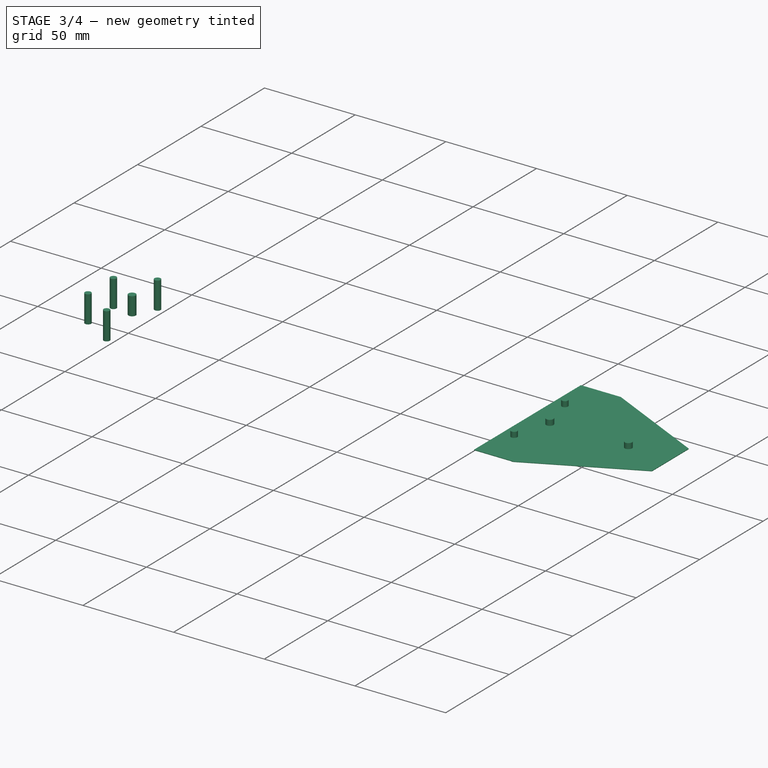
[diagram: stage 3 of 4 — iso view after this stage's code; geometry added in this stage tinted green]
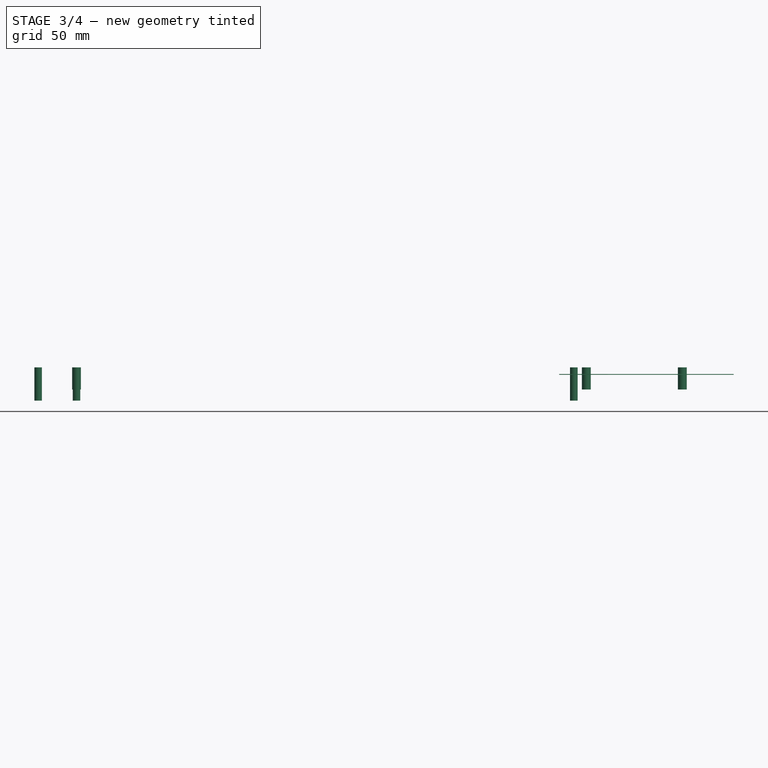
[diagram: stage 3 of 4 — front view after this stage's code; geometry added in this stage tinted green]
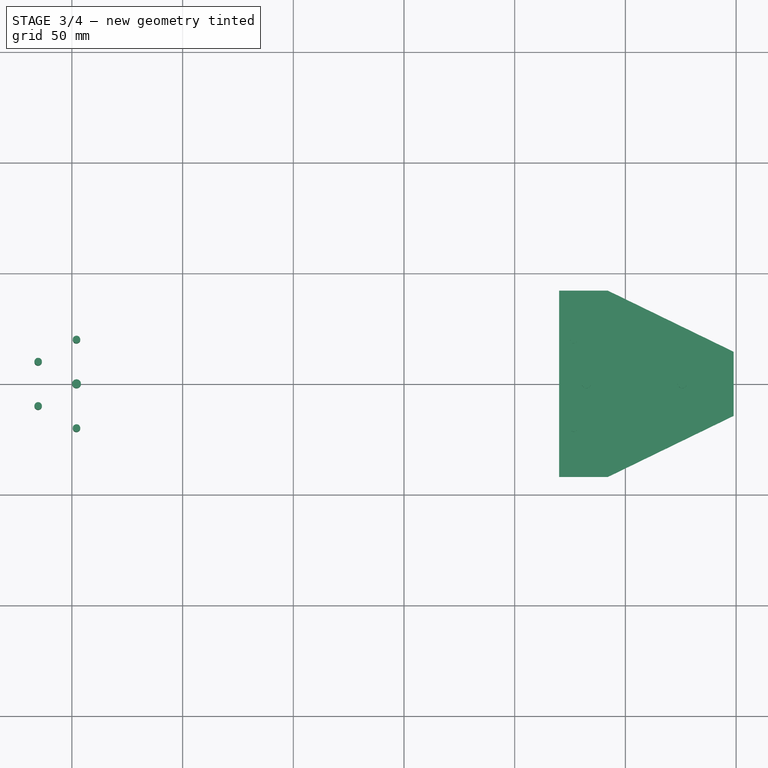
[diagram: stage 3 of 4 — top view after this stage's code; geometry added in this stage tinted green]
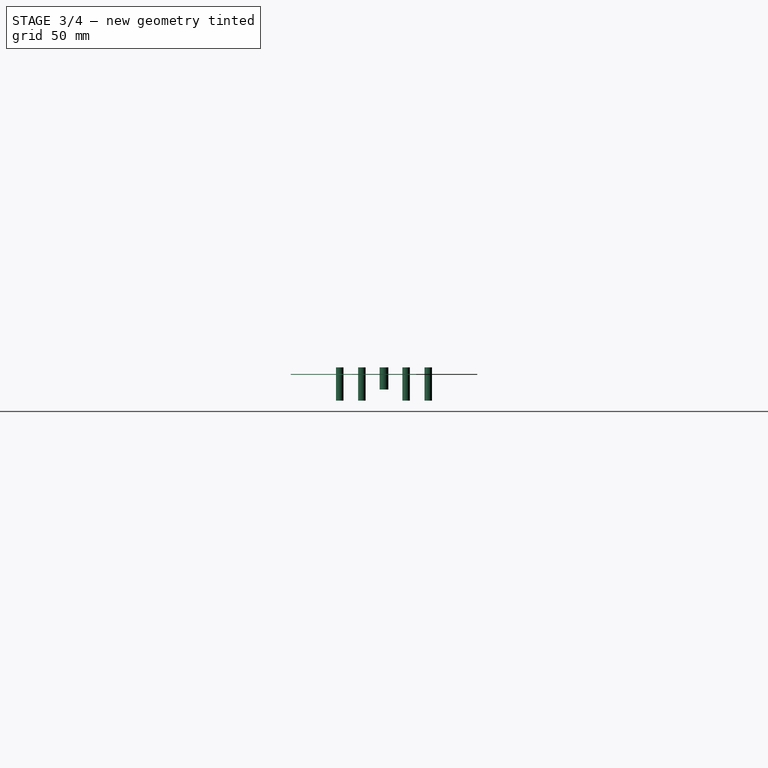
[diagram: stage 3 of 4 — right view after this stage's code; geometry added in this stage tinted green]
FEATURE [PartDesign::Body] Body002
  AllowCompound = false
  Origin = -> Origin002
FEATURE [Part::MultiFuse] Fusion
  Shapes = -> [Populate,Populate001]
FEATURE [Part::MultiFuse] Fusion001
  Shapes = -> [Populate,Populate001]
FEATURE [PartDesign::Boolean] Boolean001
  BaseFeature = -> BaseBend001
  Group = -> [Fusion001]
  Suppressed = false
  Type = 1
  UsePlacement = true
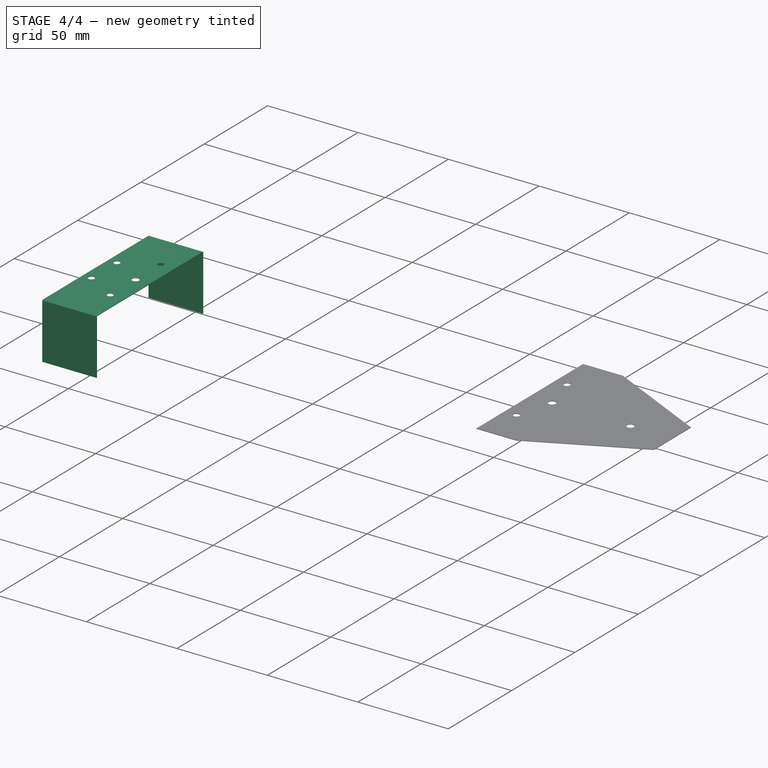
[diagram: stage 4 of 4 — iso view after this stage's code; geometry added in this stage tinted green]
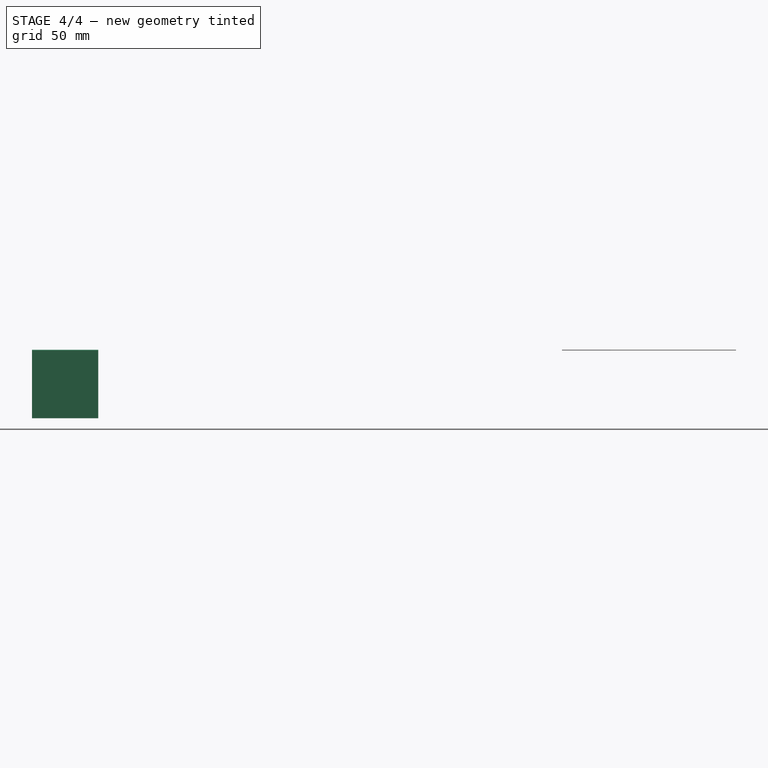
[diagram: stage 4 of 4 — front view after this stage's code; geometry added in this stage tinted green]
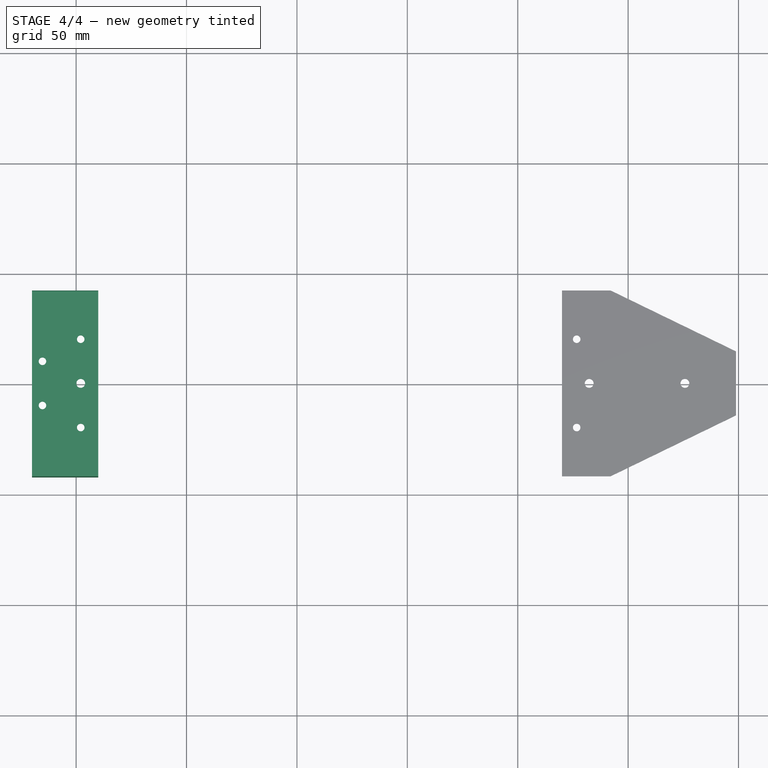
[diagram: stage 4 of 4 — top view after this stage's code; geometry added in this stage tinted green]
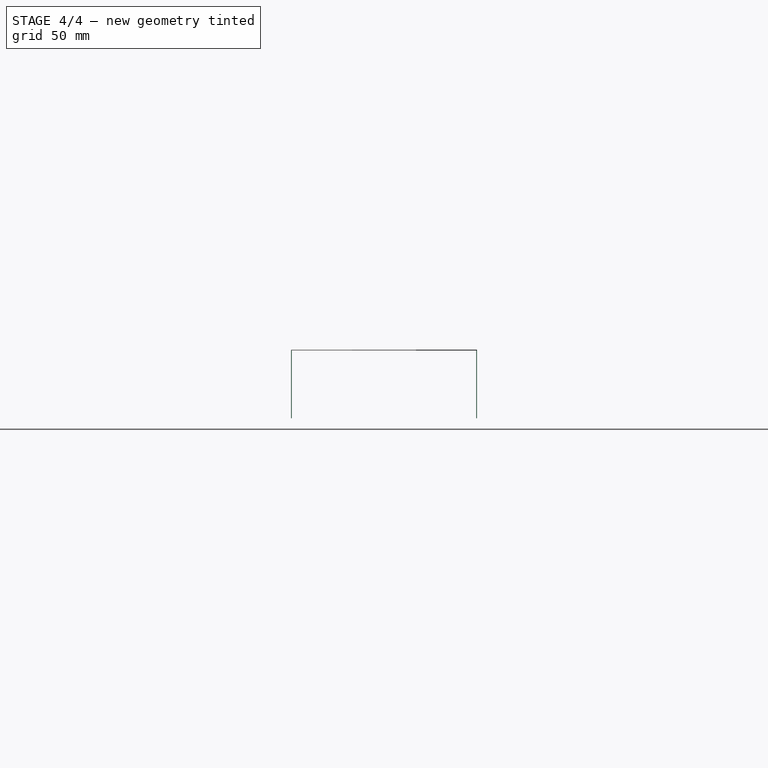
[diagram: stage 4 of 4 — right view after this stage's code; geometry added in this stage tinted green]
FEATURE [Sketcher::SketchObject] Sketch
  ArcFitTolerance = 0
  FullyConstrained = true
  MakeInternals = false
  expr: Constraints[10] = <<composit_stand3_dropper_fix_cap_outer_main>>#<<Properties>>.height - 3 mm
  expr: Constraints[11] = <<composit_stand3_dropper_fix_main>>#<<main_sketch>>.Constraints.width
  sketch-geometry (6):
    g0: LineSegment [constr] StartX=6 StartY=42.1 StartZ=0 EndX=6 EndY=-42.1 EndZ=0
    g1: LineSegment StartX=6 StartY=-42.1 StartZ=0 EndX=37 EndY=-42.1 EndZ=0
    g2: LineSegment StartX=37 StartY=-42.1 StartZ=0 EndX=37 EndY=42.1 EndZ=0
    g3: LineSegment StartX=37 StartY=42.1 StartZ=0 EndX=6 EndY=42.1 EndZ=0
    g4: GeomPoint [constr] X=21.5 Y=0 Z=0
    g5: LineSegment [constr] StartX=0 StartY=0 StartZ=0 EndX=6 EndY=4e-16 EndZ=0
  constraints (15):
    c: Coincident(g0,g1)
    c: Coincident(g1,g2)
    c: Coincident(g2,g3)
    c: Coincident(g3,g0)
    c: Symmetric(g2,g0,g4)
    c: Parallel(g2,g0)
    c: Parallel(g3,g1)
    c: Perpendicular(g3,g0)
    c: Coincident(g5,g-1)
    c: Symmetric(g0,g0,g5)
    c: Distance(g5,g2) = 37
    c: Distance(g2) = 84.2
    c: Perpendicular(g0,g5)
    c: Distance(g5) = 6
    c: PointOnObject(g4,g-1)
FEATURE [PartDesign::SubShapeBinder] Binder
  BindCopyOnChange = 0
  BindMode = 0
  ClaimChildren = true
  Context = -> Body [Binder.]
  Fuse = false
  MakeFace = true
  OffsetFill = false
  OffsetIntersection = false
  OffsetJoinType = 0
  OffsetOpenResult = false
  PartialLoad = false
  Placement = pos=(30,0,0) rot=(0,-1,0;1.5708rad)
  Relative = true
  Support = -> [Sketch]
  _Version = 2
FEATURE [PartDesign::SubShapeBinder] Binder001
  BindCopyOnChange = 0
  BindMode = 0
  ClaimChildren = false
  Context = -> Body001 [Binder001.]
  Fuse = false
  MakeFace = true
  OffsetFill = false
  OffsetIntersection = false
  OffsetJoinType = 0
  OffsetOpenResult = false
  PartialLoad = false
  Placement = pos=(0,0,37) rot=(0,0,1;0rad)
  Relative = true
  Support = -> [Connect]
  _Version = 2
  expr: .Placement.Base.z = <<composit_stand3_dropper_fix_cap_outer_main>>#<<Properties>>.height - 3 mm
  expr: Support = <<Connect>>._self
FEATURE [App::Link] Link  label="holes_3.4mm_placements"
  LinkClaimChild = true
  LinkTransform = true
  LinkedObject = -> <external composit_stand3_dropper_fix_cap_outer_main.FCStd>#Join
FEATURE [App::Link] Link001  label="holes_4mm_placements"
  LinkClaimChild = true
  LinkTransform = true
  LinkedObject = -> <external composit_stand3_dropper_fix_cap_outer_main.FCStd>#Join001
FEATURE [PartDesign::FeaturePython] BaseBend  # WARN: FeaturePython — macro-defined, semantics opaque (R4)
  BendSide = 1
  BendSketch = -> Binder
  MidPlane = false
  Reverse = true
  Suppressed = false
  length = 30
  radius = 0.1
  thickness = 0.3
FEATURE [PartDesign::Boolean] Boolean
  BaseFeature = -> BaseBend
  Group = -> [Fusion]
  Suppressed = false
  Type = 1
  UsePlacement = true
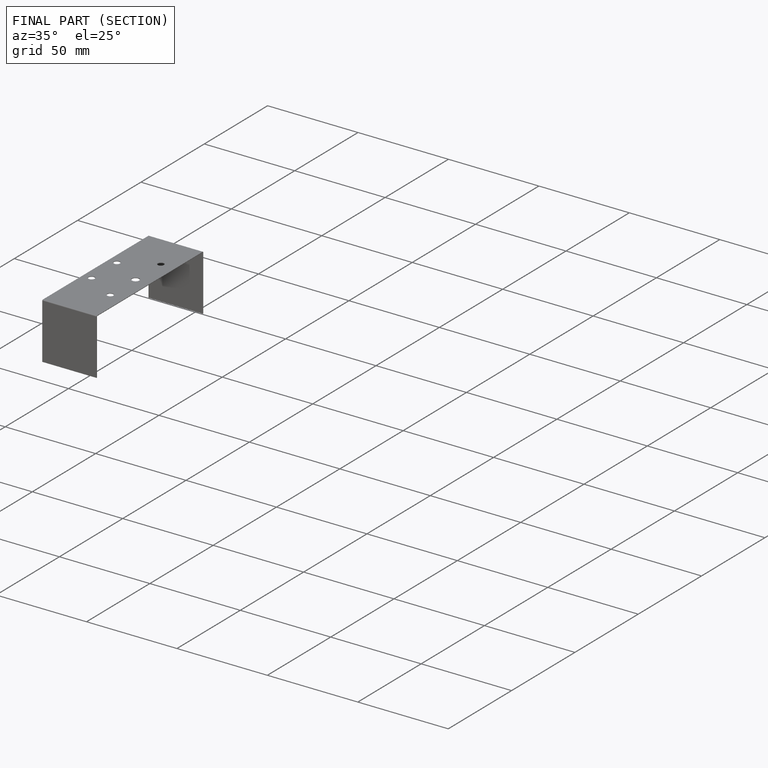
[diagram: finished part — half-section view (interior)]
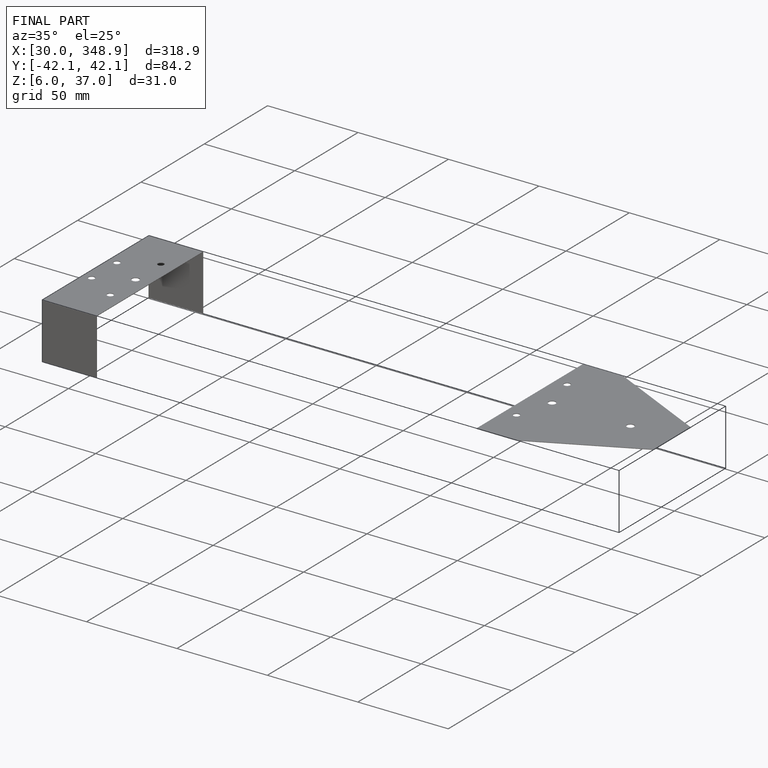
[diagram: finished part — iso view with bounding-box wireframe]
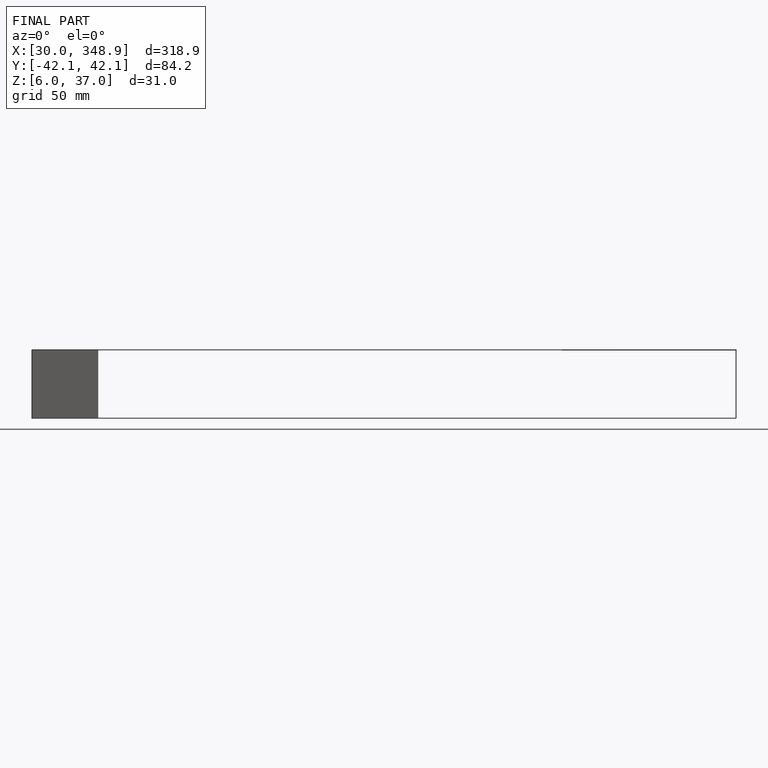
[diagram: finished part — front view with bounding-box wireframe]
